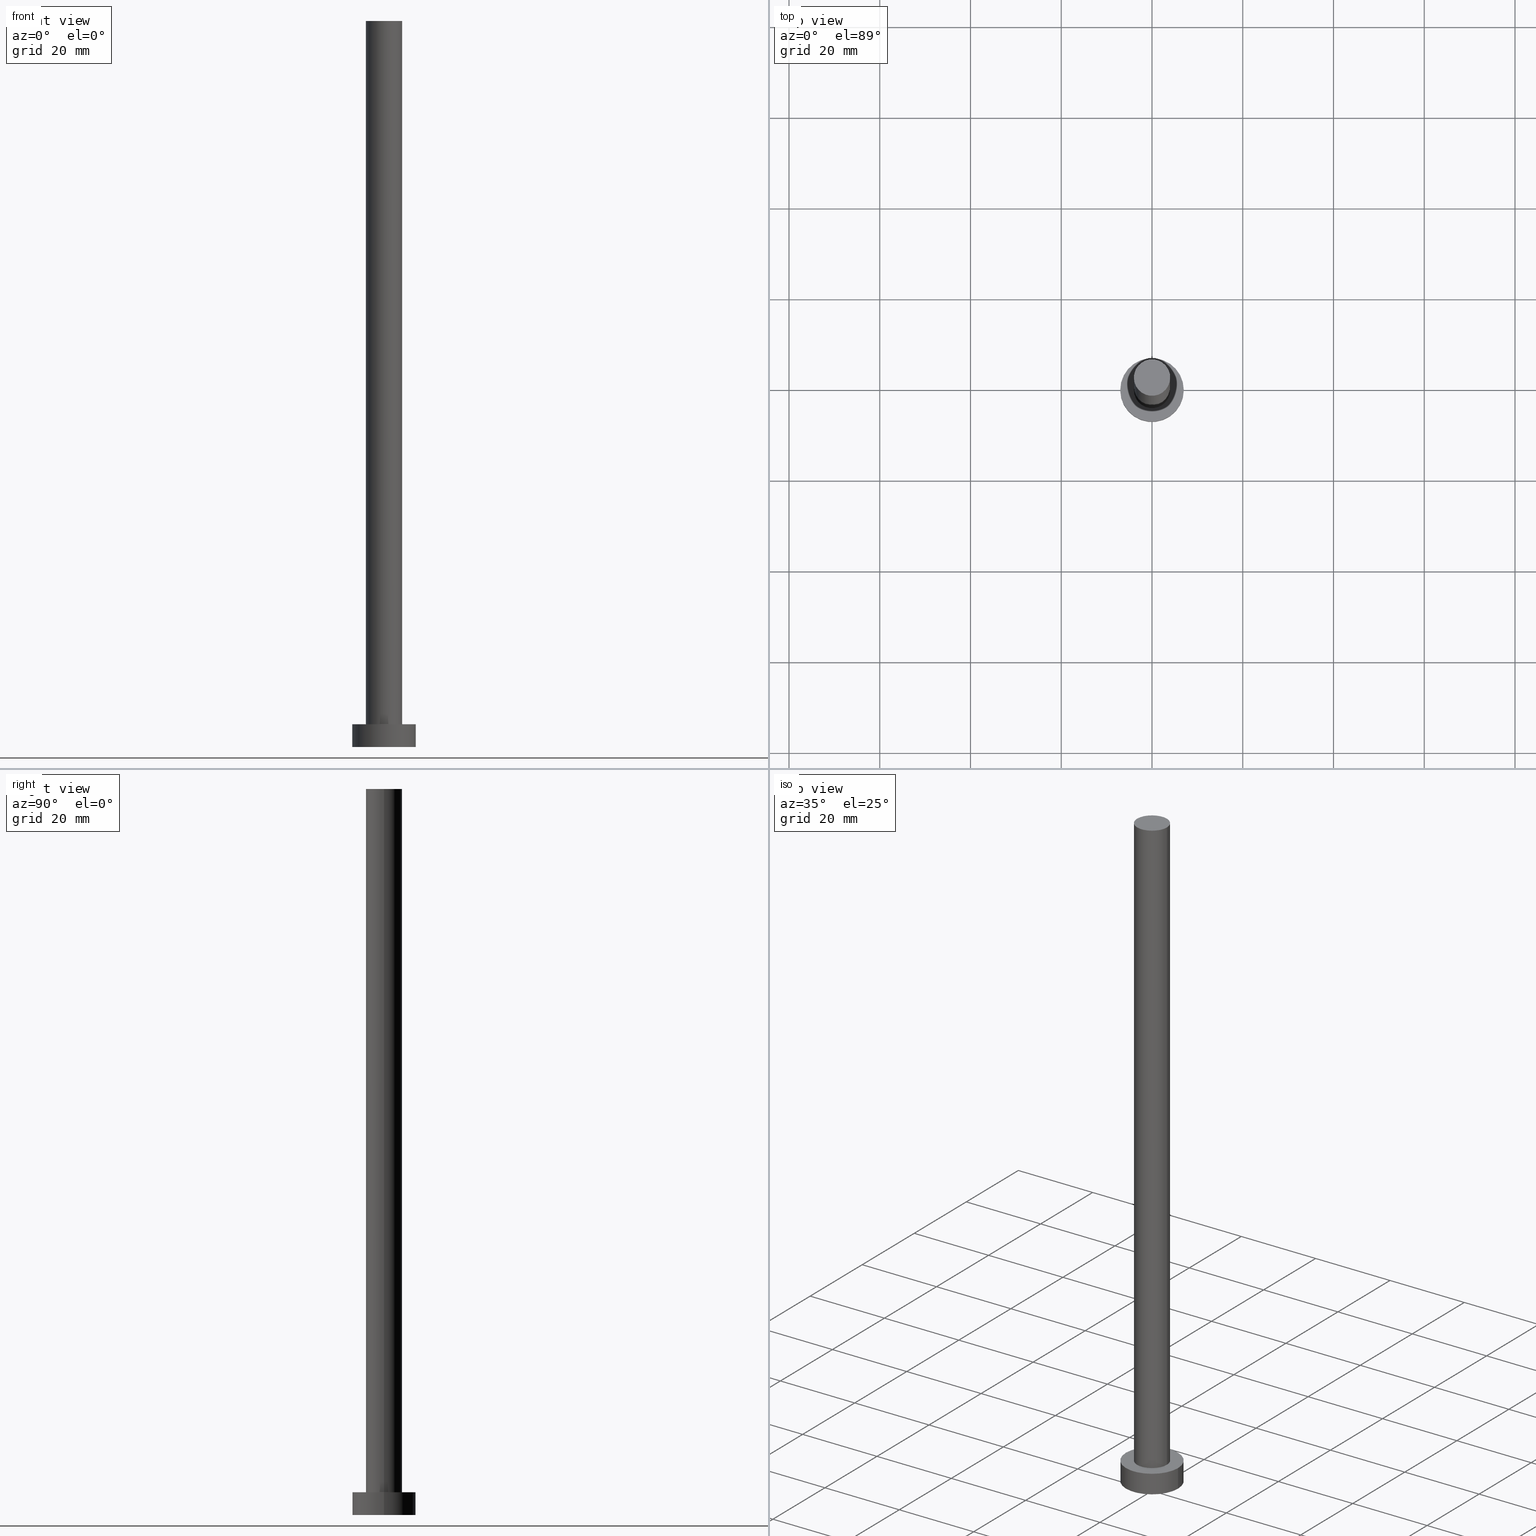
[diagram: canonical four-view strip — front | top / right | iso, engineering-drawing reading convention]
A machine part, canonical four-view strip (front | top / right | iso — engineering-drawing reading convention). The complete STEP part file that produces these views, byte-faithful:
ISO-10303-21;
HEADER;
FILE_DESCRIPTION (( 'STEP AP203' ),
    '1' );
FILE_NAME ('3413.STEP',
    '2023-02-13T14:23:11',
    ( '' ),
    ( '' ),
    'SwSTEP 2.0',
    'SolidWorks 2019',
    '' );
FILE_SCHEMA (( 'CONFIG_CONTROL_DESIGN' ));
ENDSEC;

DATA;
#1 = PERSON_AND_ORGANIZATION_ROLE ( 'design_supplier' ) ;
#2 = APPLICATION_CONTEXT ( 'configuration controlled 3d designs of mechanical parts and assemblies' ) ;
#3 = PERSON ( 'NEUR�EN�', 'NEUR�EN�', 'NEUR�EN�', ('NEUR�EN�'), ('NEUR�EN�'), ('NEUR�EN�') ) ;
#4 = AXIS2_PLACEMENT_3D ( 'NONE', #220, #119, #40 ) ;
#5 = MECHANICAL_CONTEXT ( 'NONE', #2, 'mechanical' ) ;
#6 = ORIENTED_EDGE ( 'NONE', *, *, #211, .T. ) ;
#7 = EDGE_CURVE ( 'NONE', #52, #29, #215, .T. ) ;
#8 = ORIENTED_EDGE ( 'NONE', *, *, #17, .F. ) ;
#9 = ORIENTED_EDGE ( 'NONE', *, *, #211, .F. ) ;
#10 = ORIENTED_EDGE ( 'NONE', *, *, #24, .F. ) ;
#11 = EDGE_LOOP ( 'NONE', ( #154, #26, #165, #30 ) ) ;
#12 = PLANE ( 'NONE',  #133 ) ;
#13 = FACE_OUTER_BOUND ( 'NONE', #99, .T. ) ;
#14 = CARTESIAN_POINT ( 'NONE',  ( -4.000000000000000000, 0.000000000000000000, 160.0000000000000000 ) ) ;
#15 = AXIS2_PLACEMENT_3D ( 'NONE', #214, #72, #16 ) ;
#16 = DIRECTION ( 'NONE',  ( 1.000000000000000000, 0.000000000000000000, -0.000000000000000000 ) ) ;
#17 = EDGE_CURVE ( 'NONE', #188, #103, #164, .T. ) ;
#18 = PERSON_AND_ORGANIZATION ( #3, #55 ) ;
#19 = APPROVAL_ROLE ( '' ) ;
#20 = PERSON_AND_ORGANIZATION_ROLE ( 'creator' ) ;
#21 = CALENDAR_DATE ( 2023, 13, 2 ) ;
#22 = CC_DESIGN_APPROVAL ( #35, ( #212 ) ) ;
#23 = PERSON_AND_ORGANIZATION ( #3, #55 ) ;
#24 = EDGE_CURVE ( 'NONE', #29, #52, #230, .T. ) ;
#25 = EDGE_CURVE ( 'NONE', #103, #188, #105, .T. ) ;
#26 = ORIENTED_EDGE ( 'NONE', *, *, #143, .F. ) ;
#27 = EDGE_LOOP ( 'NONE', ( #150, #10 ) ) ;
#28 = EDGE_CURVE ( 'NONE', #202, #84, #219, .T. ) ;
#29 = VERTEX_POINT ( 'NONE', #125 ) ;
#30 = ORIENTED_EDGE ( 'NONE', *, *, #7, .T. ) ;
#31 = EDGE_LOOP ( 'NONE', ( #169, #8 ) ) ;
#32 = EDGE_CURVE ( 'NONE', #172, #103, #232, .T. ) ;
#33 = FACE_OUTER_BOUND ( 'NONE', #248, .T. ) ;
#34 = CARTESIAN_POINT ( 'NONE',  ( 0.000000000000000000, 0.000000000000000000, 5.000000000000000000 ) ) ;
#35 = APPROVAL ( #149, 'NEUR�EN�' ) ;
#36 = FACE_OUTER_BOUND ( 'NONE', #31, .T. ) ;
#37 = ADVANCED_FACE ( 'NONE', ( #246 ), #126, .T. ) ;
#38 = VECTOR ( 'NONE', #218, 1000.000000000000000 ) ;
#39 = LINE ( 'NONE', #162, #38 ) ;
#40 = DIRECTION ( 'NONE',  ( 1.000000000000000000, 0.000000000000000000, 0.000000000000000000 ) ) ;
#41 = AXIS2_PLACEMENT_3D ( 'NONE', #185, #227, #66 ) ;
#42 = CC_DESIGN_APPROVAL ( #183, ( #204 ) ) ;
#43 = CALENDAR_DATE ( 2023, 13, 2 ) ;
#44 = APPROVAL_STATUS ( 'not_yet_approved' ) ;
#45 = ORIENTED_EDGE ( 'NONE', *, *, #143, .T. ) ;
#46 = ORIENTED_EDGE ( 'NONE', *, *, #170, .F. ) ;
#47 = CARTESIAN_POINT ( 'NONE',  ( 0.000000000000000000, 0.000000000000000000, 160.0000000000000000 ) ) ;
#48 = CARTESIAN_POINT ( 'NONE',  ( 0.000000000000000000, 0.000000000000000000, 160.0000000000000000 ) ) ;
#49 = LOCAL_TIME ( 15, 23, 11.00000000000000000, #199 ) ;
#50 = CARTESIAN_POINT ( 'NONE',  ( 0.000000000000000000, 0.000000000000000000, 160.0000000000000000 ) ) ;
#51 = CARTESIAN_POINT ( 'NONE',  ( -4.000000000000000000, 0.000000000000000000, 5.000000000000000000 ) ) ;
#52 = VERTEX_POINT ( 'NONE', #51 ) ;
#53 = CARTESIAN_POINT ( 'NONE',  ( 0.000000000000000000, 0.000000000000000000, 5.000000000000000000 ) ) ;
#54 = CARTESIAN_POINT ( 'NONE',  ( -7.000000000000000000, 0.000000000000000000, 0.000000000000000000 ) ) ;
#55 = ORGANIZATION ( 'NEUR�EN�', 'NEUR�EN�', '' ) ;
#56 = DIRECTION ( 'NONE',  ( -1.000000000000000000, 0.000000000000000000, 0.000000000000000000 ) ) ;
#57 = EDGE_CURVE ( 'NONE', #132, #188, #157, .T. ) ;
#58 = PERSON_AND_ORGANIZATION ( #3, #55 ) ;
#59 = AXIS2_PLACEMENT_3D ( 'NONE', #135, #191, #73 ) ;
#60 = COORDINATED_UNIVERSAL_TIME_OFFSET ( 1, 0, .AHEAD. ) ;
#61 = SHAPE_DEFINITION_REPRESENTATION ( #174, #114 ) ;
#62 = ADVANCED_FACE ( 'NONE', ( #229 ), #104, .T. ) ;
#63 = LOCAL_TIME ( 15, 23, 11.00000000000000000, #91 ) ;
#64 = ADVANCED_FACE ( 'NONE', ( #89 ), #239, .T. ) ;
#65 = ORIENTED_EDGE ( 'NONE', *, *, #32, .T. ) ;
#66 = DIRECTION ( 'NONE',  ( 1.000000000000000000, 0.000000000000000000, 0.000000000000000000 ) ) ;
#67 = DIRECTION ( 'NONE',  ( -1.000000000000000000, 0.000000000000000000, 0.000000000000000000 ) ) ;
#68 = AXIS2_PLACEMENT_3D ( 'NONE', #53, #236, #235 ) ;
#69 = CARTESIAN_POINT ( 'NONE',  ( 0.000000000000000000, 0.000000000000000000, 0.000000000000000000 ) ) ;
#70 = DIRECTION ( 'NONE',  ( 0.000000000000000000, 0.000000000000000000, 1.000000000000000000 ) ) ;
#71 = DIRECTION ( 'NONE',  ( -0.000000000000000000, -0.000000000000000000, -1.000000000000000000 ) ) ;
#72 = DIRECTION ( 'NONE',  ( 0.000000000000000000, 0.000000000000000000, 1.000000000000000000 ) ) ;
#73 = DIRECTION ( 'NONE',  ( 1.000000000000000000, 0.000000000000000000, 0.000000000000000000 ) ) ;
#74 = AXIS2_PLACEMENT_3D ( 'NONE', #209, #70, #102 ) ;
#75 = APPROVAL_DATE_TIME ( #181, #92 ) ;
#76 = CC_DESIGN_PERSON_AND_ORGANIZATION_ASSIGNMENT ( #116, #144, ( #194 ) ) ;
#77 = PERSON_AND_ORGANIZATION ( #3, #55 ) ;
#78 = COORDINATED_UNIVERSAL_TIME_OFFSET ( 1, 0, .AHEAD. ) ;
#79 = EDGE_LOOP ( 'NONE', ( #45, #223 ) ) ;
#80 = LOCAL_TIME ( 15, 23, 11.00000000000000000, #60 ) ;
#81 = CC_DESIGN_PERSON_AND_ORGANIZATION_ASSIGNMENT ( #58, #20, ( #204 ) ) ;
#82 = DIRECTION ( 'NONE',  ( 1.000000000000000000, 0.000000000000000000, 0.000000000000000000 ) ) ;
#83 = CARTESIAN_POINT ( 'NONE',  ( 0.000000000000000000, 0.000000000000000000, 0.000000000000000000 ) ) ;
#84 = VERTEX_POINT ( 'NONE', #14 ) ;
#85 = DIRECTION ( 'NONE',  ( 1.000000000000000000, 0.000000000000000000, 0.000000000000000000 ) ) ;
#86 = DIRECTION ( 'NONE',  ( -1.000000000000000000, 0.000000000000000000, 0.000000000000000000 ) ) ;
#87 = AXIS2_PLACEMENT_3D ( 'NONE', #253, #210, #85 ) ;
#88 =( NAMED_UNIT ( * ) PLANE_ANGLE_UNIT ( ) SI_UNIT ( $, .RADIAN. ) );
#89 = FACE_OUTER_BOUND ( 'NONE', #228, .T. ) ;
#90 = APPLICATION_CONTEXT ( 'configuration controlled 3d designs of mechanical parts and assemblies' ) ;
#91 = COORDINATED_UNIVERSAL_TIME_OFFSET ( 1, 0, .AHEAD. ) ;
#92 = APPROVAL ( #44, 'NEUR�EN�' ) ;
#93 = AXIS2_PLACEMENT_3D ( 'NONE', #69, #158, #82 ) ;
#94 = APPROVAL_DATE_TIME ( #243, #183 ) ;
#95 = CALENDAR_DATE ( 2023, 13, 2 ) ;
#96 = CIRCLE ( 'NONE', #87, 7.000000000000000000 ) ;
#97 = CC_DESIGN_DATE_AND_TIME_ASSIGNMENT ( #163, #178, ( #194 ) ) ;
#98 = DATE_AND_TIME ( #115, #80 ) ;
#99 = EDGE_LOOP ( 'NONE', ( #153, #225, #186, #207 ) ) ;
#100 = ORIENTED_EDGE ( 'NONE', *, *, #155, .T. ) ;
#101 = CC_DESIGN_APPROVAL ( #92, ( #194 ) ) ;
#102 = DIRECTION ( 'NONE',  ( 1.000000000000000000, 0.000000000000000000, 0.000000000000000000 ) ) ;
#103 = VERTEX_POINT ( 'NONE', #54 ) ;
#104 = CYLINDRICAL_SURFACE ( 'NONE', #138, 4.000000000000000000 ) ;
#105 = CIRCLE ( 'NONE', #93, 7.000000000000000000 ) ;
#106 = CARTESIAN_POINT ( 'NONE',  ( 7.000000000000000000, 8.572527594031473190E-16, 0.000000000000000000 ) ) ;
#107 = PLANE ( 'NONE',  #240 ) ;
#108 =( LENGTH_UNIT ( ) NAMED_UNIT ( * ) SI_UNIT ( .MILLI., .METRE. ) );
#109 = DESIGN_CONTEXT ( 'detailed design', #90, 'design' ) ;
#110 = CC_DESIGN_PERSON_AND_ORGANIZATION_ASSIGNMENT ( #255, #142, ( #136 ) ) ;
#111 = DIRECTION ( 'NONE',  ( 1.000000000000000000, 0.000000000000000000, -0.000000000000000000 ) ) ;
#112 = AXIS2_PLACEMENT_3D ( 'NONE', #34, #193, #86 ) ;
#113 = CYLINDRICAL_SURFACE ( 'NONE', #112, 7.000000000000000000 ) ;
#114 = ADVANCED_BREP_SHAPE_REPRESENTATION ( '3413', ( #124, #4 ), #198 ) ;
#115 = CALENDAR_DATE ( 2023, 13, 2 ) ;
#116 = PERSON_AND_ORGANIZATION ( #3, #55 ) ;
#117 = CIRCLE ( 'NONE', #59, 4.000000000000000000 ) ;
#118 = CC_DESIGN_SECURITY_CLASSIFICATION ( #194, ( #204 ) ) ;
#119 = DIRECTION ( 'NONE',  ( 0.000000000000000000, 0.000000000000000000, 1.000000000000000000 ) ) ;
#120 = APPROVAL_ROLE ( '' ) ;
#121 = ORIENTED_EDGE ( 'NONE', *, *, #24, .T. ) ;
#122 = APPROVAL_ROLE ( '' ) ;
#123 = LOCAL_TIME ( 15, 23, 11.00000000000000000, #78 ) ;
#124 = MANIFOLD_SOLID_BREP ( 'P�idat vysunut�m3', #224 ) ;
#125 = CARTESIAN_POINT ( 'NONE',  ( 4.000000000000000000, 4.898587196589412829E-16, 5.000000000000000000 ) ) ;
#126 = CYLINDRICAL_SURFACE ( 'NONE', #175, 4.000000000000000000 ) ;
#127 = VECTOR ( 'NONE', #71, 1000.000000000000000 ) ;
#128 = DIRECTION ( 'NONE',  ( -0.000000000000000000, -0.000000000000000000, -1.000000000000000000 ) ) ;
#129 = EDGE_CURVE ( 'NONE', #202, #29, #39, .T. ) ;
#130 = CARTESIAN_POINT ( 'NONE',  ( 7.000000000000000000, 8.572527594031473190E-16, 5.000000000000000000 ) ) ;
#131 = ADVANCED_FACE ( 'NONE', ( #177 ), #12, .T. ) ;
#132 = VERTEX_POINT ( 'NONE', #251 ) ;
#133 = AXIS2_PLACEMENT_3D ( 'NONE', #250, #139, #111 ) ;
#134 = AXIS2_PLACEMENT_3D ( 'NONE', #161, #252, #56 ) ;
#135 = CARTESIAN_POINT ( 'NONE',  ( 0.000000000000000000, 0.000000000000000000, 160.0000000000000000 ) ) ;
#136 = PRODUCT ( '3413', '3413', '', ( #5 ) ) ;
#137 = CARTESIAN_POINT ( 'NONE',  ( -7.000000000000000000, 0.000000000000000000, 5.000000000000000000 ) ) ;
#138 = AXIS2_PLACEMENT_3D ( 'NONE', #50, #128, #189 ) ;
#139 = DIRECTION ( 'NONE',  ( 0.000000000000000000, 0.000000000000000000, 1.000000000000000000 ) ) ;
#140 = PRODUCT_RELATED_PRODUCT_CATEGORY ( 'detail', '', ( #136 ) ) ;
#141 = CARTESIAN_POINT ( 'NONE',  ( -4.000000000000000000, 0.000000000000000000, 160.0000000000000000 ) ) ;
#142 = PERSON_AND_ORGANIZATION_ROLE ( 'design_owner' ) ;
#143 = EDGE_CURVE ( 'NONE', #84, #202, #117, .T. ) ;
#144 = PERSON_AND_ORGANIZATION_ROLE ( 'classification_officer' ) ;
#145 = AXIS2_PLACEMENT_3D ( 'NONE', #83, #245, #167 ) ;
#146 = CC_DESIGN_PERSON_AND_ORGANIZATION_ASSIGNMENT ( #179, #1, ( #204 ) ) ;
#147 = CALENDAR_DATE ( 2023, 13, 2 ) ;
#148 = ORIENTED_EDGE ( 'NONE', *, *, #25, .T. ) ;
#149 = APPROVAL_STATUS ( 'not_yet_approved' ) ;
#150 = ORIENTED_EDGE ( 'NONE', *, *, #7, .F. ) ;
#151 = PERSON_AND_ORGANIZATION_ROLE ( 'creator' ) ;
#152 = VECTOR ( 'NONE', #208, 1000.000000000000000 ) ;
#153 = ORIENTED_EDGE ( 'NONE', *, *, #155, .F. ) ;
#154 = ORIENTED_EDGE ( 'NONE', *, *, #129, .F. ) ;
#155 = EDGE_CURVE ( 'NONE', #132, #172, #96, .T. ) ;
#156 = UNCERTAINTY_MEASURE_WITH_UNIT (LENGTH_MEASURE( 1.000000000000000082E-05 ), #108, 'distance_accuracy_value', 'NONE');
#157 = LINE ( 'NONE', #130, #152 ) ;
#158 = DIRECTION ( 'NONE',  ( 0.000000000000000000, 0.000000000000000000, 1.000000000000000000 ) ) ;
#159 = ADVANCED_FACE ( 'NONE', ( #173, #33 ), #107, .T. ) ;
#160 = DIRECTION ( 'NONE',  ( 0.000000000000000000, 0.000000000000000000, 1.000000000000000000 ) ) ;
#161 = CARTESIAN_POINT ( 'NONE',  ( 0.000000000000000000, 0.000000000000000000, 5.000000000000000000 ) ) ;
#162 = CARTESIAN_POINT ( 'NONE',  ( 4.000000000000000000, 4.898587196589412829E-16, 160.0000000000000000 ) ) ;
#163 = DATE_AND_TIME ( #43, #49 ) ;
#164 = CIRCLE ( 'NONE', #145, 7.000000000000000000 ) ;
#165 = ORIENTED_EDGE ( 'NONE', *, *, #170, .T. ) ;
#166 = APPROVAL_DATE_TIME ( #203, #35 ) ;
#167 = DIRECTION ( 'NONE',  ( 1.000000000000000000, 0.000000000000000000, 0.000000000000000000 ) ) ;
#168 = DIRECTION ( 'NONE',  ( -0.000000000000000000, -0.000000000000000000, -1.000000000000000000 ) ) ;
#169 = ORIENTED_EDGE ( 'NONE', *, *, #25, .F. ) ;
#170 = EDGE_CURVE ( 'NONE', #84, #52, #196, .T. ) ;
#171 = EDGE_LOOP ( 'NONE', ( #187, #249, #121, #46 ) ) ;
#172 = VERTEX_POINT ( 'NONE', #137 ) ;
#173 = FACE_BOUND ( 'NONE', #27, .T. ) ;
#174 = PRODUCT_DEFINITION_SHAPE ( 'NONE', 'NONE',  #212 ) ;
#175 = AXIS2_PLACEMENT_3D ( 'NONE', #48, #206, #67 ) ;
#176 =( NAMED_UNIT ( * ) SI_UNIT ( $, .STERADIAN. ) SOLID_ANGLE_UNIT ( ) );
#177 = FACE_OUTER_BOUND ( 'NONE', #79, .T. ) ;
#178 = DATE_TIME_ROLE ( 'classification_date' ) ;
#179 = PERSON_AND_ORGANIZATION ( #3, #55 ) ;
#180 = APPLICATION_PROTOCOL_DEFINITION ( 'international standard', 'config_control_design', 1994, #90 ) ;
#181 = DATE_AND_TIME ( #21, #123 ) ;
#182 = CIRCLE ( 'NONE', #68, 7.000000000000000000 ) ;
#183 = APPROVAL ( #221, 'NEUR�EN�' ) ;
#184 = SECURITY_CLASSIFICATION_LEVEL ( 'unclassified' ) ;
#185 = CARTESIAN_POINT ( 'NONE',  ( 0.000000000000000000, 0.000000000000000000, 5.000000000000000000 ) ) ;
#186 = ORIENTED_EDGE ( 'NONE', *, *, #17, .T. ) ;
#187 = ORIENTED_EDGE ( 'NONE', *, *, #28, .F. ) ;
#188 = VERTEX_POINT ( 'NONE', #106 ) ;
#189 = DIRECTION ( 'NONE',  ( -1.000000000000000000, 0.000000000000000000, 0.000000000000000000 ) ) ;
#190 = APPROVAL_PERSON_ORGANIZATION ( #201, #35, #122 ) ;
#191 = DIRECTION ( 'NONE',  ( 0.000000000000000000, 0.000000000000000000, 1.000000000000000000 ) ) ;
#192 = CARTESIAN_POINT ( 'NONE',  ( 0.000000000000000000, 0.000000000000000000, 5.000000000000000000 ) ) ;
#193 = DIRECTION ( 'NONE',  ( -0.000000000000000000, -0.000000000000000000, -1.000000000000000000 ) ) ;
#194 = SECURITY_CLASSIFICATION ( '', '', #184 ) ;
#195 = DIRECTION ( 'NONE',  ( 0.000000000000000000, 0.000000000000000000, 1.000000000000000000 ) ) ;
#196 = LINE ( 'NONE', #141, #127 ) ;
#197 = ADVANCED_FACE ( 'NONE', ( #36 ), #233, .F. ) ;
#198 =( GEOMETRIC_REPRESENTATION_CONTEXT ( 3 ) GLOBAL_UNCERTAINTY_ASSIGNED_CONTEXT ( ( #156 ) ) GLOBAL_UNIT_ASSIGNED_CONTEXT ( ( #108, #88, #176 ) ) REPRESENTATION_CONTEXT ( 'NONE', 'WORKASPACE' ) );
#199 = COORDINATED_UNIVERSAL_TIME_OFFSET ( 1, 0, .AHEAD. ) ;
#200 = CC_DESIGN_PERSON_AND_ORGANIZATION_ASSIGNMENT ( #23, #151, ( #212 ) ) ;
#201 = PERSON_AND_ORGANIZATION ( #3, #55 ) ;
#202 = VERTEX_POINT ( 'NONE', #217 ) ;
#203 = DATE_AND_TIME ( #95, #226 ) ;
#204 = PRODUCT_DEFINITION_FORMATION_WITH_SPECIFIED_SOURCE ( 'LIBOVOLN�', '', #136, .NOT_KNOWN. ) ;
#205 = ORIENTED_EDGE ( 'NONE', *, *, #57, .F. ) ;
#206 = DIRECTION ( 'NONE',  ( -0.000000000000000000, -0.000000000000000000, -1.000000000000000000 ) ) ;
#207 = ORIENTED_EDGE ( 'NONE', *, *, #32, .F. ) ;
#208 = DIRECTION ( 'NONE',  ( -0.000000000000000000, -0.000000000000000000, -1.000000000000000000 ) ) ;
#209 = CARTESIAN_POINT ( 'NONE',  ( 0.000000000000000000, 0.000000000000000000, 5.000000000000000000 ) ) ;
#210 = DIRECTION ( 'NONE',  ( 0.000000000000000000, 0.000000000000000000, 1.000000000000000000 ) ) ;
#211 = EDGE_CURVE ( 'NONE', #172, #132, #182, .T. ) ;
#212 = PRODUCT_DEFINITION ( 'NEZN�M�', '', #204, #109 ) ;
#213 = DIRECTION ( 'NONE',  ( 1.000000000000000000, 0.000000000000000000, -0.000000000000000000 ) ) ;
#214 = CARTESIAN_POINT ( 'NONE',  ( 0.000000000000000000, 0.000000000000000000, 0.000000000000000000 ) ) ;
#215 = CIRCLE ( 'NONE', #74, 4.000000000000000000 ) ;
#216 = CC_DESIGN_DATE_AND_TIME_ASSIGNMENT ( #98, #242, ( #212 ) ) ;
#217 = CARTESIAN_POINT ( 'NONE',  ( 4.000000000000000000, 4.898587196589412829E-16, 160.0000000000000000 ) ) ;
#218 = DIRECTION ( 'NONE',  ( -0.000000000000000000, -0.000000000000000000, -1.000000000000000000 ) ) ;
#219 = CIRCLE ( 'NONE', #244, 4.000000000000000000 ) ;
#220 = CARTESIAN_POINT ( 'NONE',  ( 0.000000000000000000, 0.000000000000000000, 0.000000000000000000 ) ) ;
#221 = APPROVAL_STATUS ( 'not_yet_approved' ) ;
#222 = ADVANCED_FACE ( 'NONE', ( #13 ), #113, .T. ) ;
#223 = ORIENTED_EDGE ( 'NONE', *, *, #28, .T. ) ;
#224 = CLOSED_SHELL ( 'NONE', ( #62, #222, #64, #159, #197, #37, #131 ) ) ;
#225 = ORIENTED_EDGE ( 'NONE', *, *, #57, .T. ) ;
#226 = LOCAL_TIME ( 15, 23, 11.00000000000000000, #241 ) ;
#227 = DIRECTION ( 'NONE',  ( 0.000000000000000000, 0.000000000000000000, 1.000000000000000000 ) ) ;
#228 = EDGE_LOOP ( 'NONE', ( #205, #9, #65, #148 ) ) ;
#229 = FACE_OUTER_BOUND ( 'NONE', #171, .T. ) ;
#230 = CIRCLE ( 'NONE', #41, 4.000000000000000000 ) ;
#231 = CARTESIAN_POINT ( 'NONE',  ( -7.000000000000000000, 0.000000000000000000, 5.000000000000000000 ) ) ;
#232 = LINE ( 'NONE', #231, #254 ) ;
#233 = PLANE ( 'NONE',  #15 ) ;
#234 = APPROVAL_PERSON_ORGANIZATION ( #18, #183, #19 ) ;
#235 = DIRECTION ( 'NONE',  ( 1.000000000000000000, 0.000000000000000000, 0.000000000000000000 ) ) ;
#236 = DIRECTION ( 'NONE',  ( 0.000000000000000000, 0.000000000000000000, 1.000000000000000000 ) ) ;
#237 = APPLICATION_PROTOCOL_DEFINITION ( 'international standard', 'config_control_design', 1994, #2 ) ;
#238 = APPROVAL_PERSON_ORGANIZATION ( #77, #92, #120 ) ;
#239 = CYLINDRICAL_SURFACE ( 'NONE', #134, 7.000000000000000000 ) ;
#240 = AXIS2_PLACEMENT_3D ( 'NONE', #192, #195, #213 ) ;
#241 = COORDINATED_UNIVERSAL_TIME_OFFSET ( 1, 0, .AHEAD. ) ;
#242 = DATE_TIME_ROLE ( 'creation_date' ) ;
#243 = DATE_AND_TIME ( #147, #63 ) ;
#244 = AXIS2_PLACEMENT_3D ( 'NONE', #47, #160, #247 ) ;
#245 = DIRECTION ( 'NONE',  ( 0.000000000000000000, 0.000000000000000000, 1.000000000000000000 ) ) ;
#246 = FACE_OUTER_BOUND ( 'NONE', #11, .T. ) ;
#247 = DIRECTION ( 'NONE',  ( 1.000000000000000000, 0.000000000000000000, 0.000000000000000000 ) ) ;
#248 = EDGE_LOOP ( 'NONE', ( #6, #100 ) ) ;
#249 = ORIENTED_EDGE ( 'NONE', *, *, #129, .T. ) ;
#250 = CARTESIAN_POINT ( 'NONE',  ( 0.000000000000000000, 0.000000000000000000, 160.0000000000000000 ) ) ;
#251 = CARTESIAN_POINT ( 'NONE',  ( 7.000000000000000000, 8.572527594031473190E-16, 5.000000000000000000 ) ) ;
#252 = DIRECTION ( 'NONE',  ( -0.000000000000000000, -0.000000000000000000, -1.000000000000000000 ) ) ;
#253 = CARTESIAN_POINT ( 'NONE',  ( 0.000000000000000000, 0.000000000000000000, 5.000000000000000000 ) ) ;
#254 = VECTOR ( 'NONE', #168, 1000.000000000000000 ) ;
#255 = PERSON_AND_ORGANIZATION ( #3, #55 ) ;
ENDSEC;
END-ISO-10303-21;
